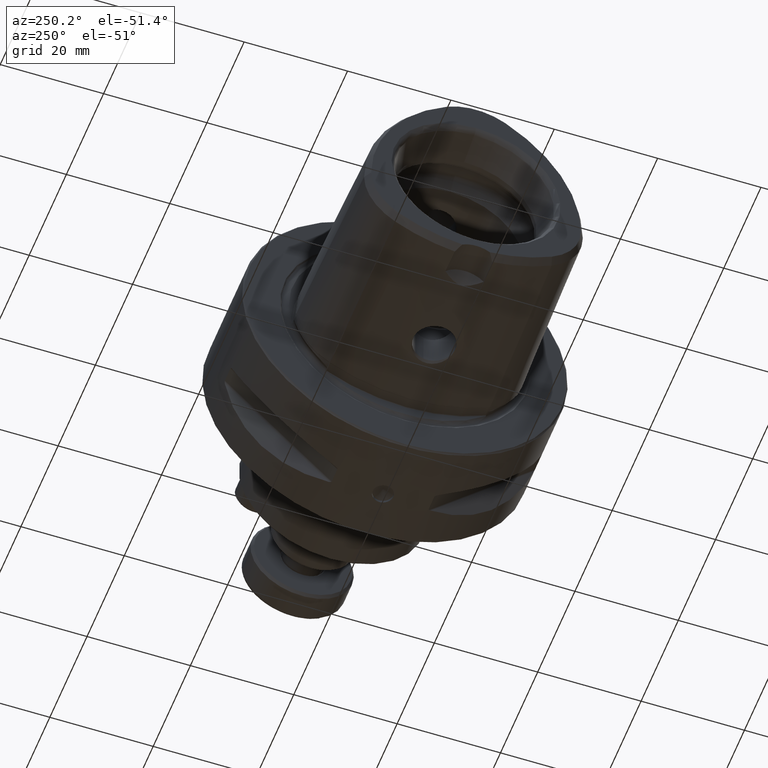
[diagram: clean part render]
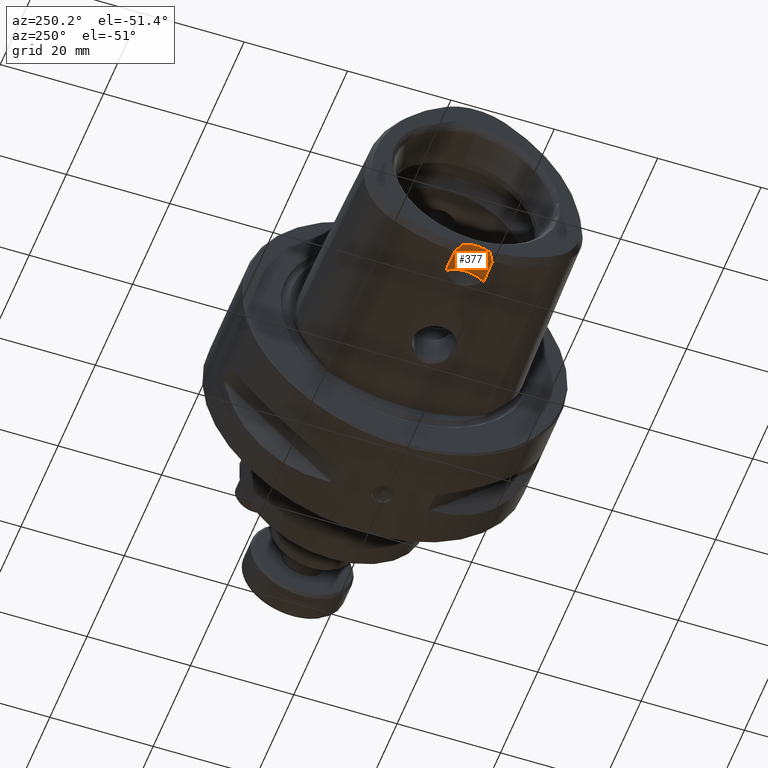
[diagram: same view with one face highlighted and labeled with its STEP entity id]
A machine part, auxiliary view. The second image highlights one B-rep face of the part: STEP entity #377.
In plain terms, the highlighted cylindrical surface (edge-blend (fillet) strip) has radius 5 mm, axis along (1, 0, 0).
Its self-contained STEP definition (entity closure, byte-faithful):
#377 = ADVANCED_FACE( '', ( #870 ), #871, .F. );
#870 = FACE_OUTER_BOUND( '', #1604, .T. );
#871 = CYLINDRICAL_SURFACE( '', #1605, 5.00000000000000 );
#1604 = EDGE_LOOP( '', ( #2385, #2386, #2387, #2388, #2389, #2390 ) );
#1605 = AXIS2_PLACEMENT_3D( '', #2391, #2392, #2393 );
#2385 = ORIENTED_EDGE( '', *, *, #3919, .T. );
#2386 = ORIENTED_EDGE( '', *, *, #3920, .T. );
#2387 = ORIENTED_EDGE( '', *, *, #3877, .F. );
#2388 = ORIENTED_EDGE( '', *, *, #3921, .F. );
#2389 = ORIENTED_EDGE( '', *, *, #3882, .F. );
#2390 = ORIENTED_EDGE( '', *, *, #3922, .T. );
#2391 = CARTESIAN_POINT( '', ( -38.0000000000000, 0.000000000000000, -23.0000000000000 ) );
#2392 = DIRECTION( '', ( 1.00000000000000, -0.000000000000000, -0.000000000000000 ) );
#2393 = DIRECTION( '', ( 0.000000000000000, 0.000000000000000, 1.00000000000000 ) );
#3877 = EDGE_CURVE( '', #4481, #4482, #4483, .T. );
#3882 = EDGE_CURVE( '', #4489, #4491, #4492, .T. );
#3919 = EDGE_CURVE( '', #4552, #4553, #4554, .T. );
#3920 = EDGE_CURVE( '', #4553, #4482, #4555, .T. );
#3921 = EDGE_CURVE( '', #4491, #4481, #4556, .T. );
#3922 = EDGE_CURVE( '', #4489, #4552, #4557, .T. );
#4481 = VERTEX_POINT( '', #5345 );
#4482 = VERTEX_POINT( '', #5346 );
#4483 = B_SPLINE_CURVE_WITH_KNOTS( '', 3, ( #5347, #5348, #5349, #5350 ), .UNSPECIFIED., .F., .F., ( 4, 4 ), ( 3.12145211077177E-005, 0.00481593698441368 ), .UNSPECIFIED. );
#4489 = VERTEX_POINT( '', #5357 );
#4491 = VERTEX_POINT( '', #5359 );
#4492 = B_SPLINE_CURVE_WITH_KNOTS( '', 3, ( #5360, #5361, #5362, #5363 ), .UNSPECIFIED., .F., .F., ( 4, 4 ), ( 0.00144946933262563, 0.00623419179593159 ), .UNSPECIFIED. );
#4552 = VERTEX_POINT( '', #5536 );
#4553 = VERTEX_POINT( '', #5537 );
#4554 = CIRCLE( '', #5538, 5.00000000000000 );
#4555 = B_SPLINE_CURVE_WITH_KNOTS( '', 3, ( #5539, #5540, #5541, #5542 ), .UNSPECIFIED., .F., .F., ( 4, 4 ), ( 8.18267427085042E-018, 0.00186926217942001 ), .UNSPECIFIED. );
#4556 = CIRCLE( '', #5543, 5.00000000000000 );
#4557 = B_SPLINE_CURVE_WITH_KNOTS( '', 3, ( #5544, #5545, #5546, #5547 ), .UNSPECIFIED., .F., .F., ( 4, 4 ), ( 0.000000000000000, 0.00186926217942001 ), .UNSPECIFIED. );
#5345 = CARTESIAN_POINT( '', ( -31.8000000000000, 3.71338904159242, -19.6517554112966 ) );
#5346 = CARTESIAN_POINT( '', ( -36.5824429953531, 3.61288780053967, -19.5435507032922 ) );
#5347 = CARTESIAN_POINT( '', ( -31.8000000000000, 3.71338904159241, -19.6517554112966 ) );
#5348 = CARTESIAN_POINT( '', ( -33.3941649931350, 3.68080287505197, -19.6156155444103 ) );
#5349 = CARTESIAN_POINT( '', ( -34.9883136879413, 3.64732572728819, -19.5795472867063 ) );
#5350 = CARTESIAN_POINT( '', ( -36.5824429953532, 3.61288780053965, -19.5435507032922 ) );
#5357 = CARTESIAN_POINT( '', ( -36.5824429953531, -3.61288780053967, -19.5435507032922 ) );
#5359 = CARTESIAN_POINT( '', ( -31.8000000000000, -3.71338904159242, -19.6517554112966 ) );
#5360 = CARTESIAN_POINT( '', ( -36.5824429953531, -3.61288780053965, -19.5435507032922 ) );
#5361 = CARTESIAN_POINT( '', ( -34.9883136879413, -3.64732572728819, -19.5795472867063 ) );
#5362 = CARTESIAN_POINT( '', ( -33.3941649931350, -3.68080287505197, -19.6156155444103 ) );
#5363 = CARTESIAN_POINT( '', ( -31.8000000000000, -3.71338904159241, -19.6517554112966 ) );
#5536 = CARTESIAN_POINT( '', ( -38.0000000000000, -2.66956773904171, -18.7723046364872 ) );
#5537 = CARTESIAN_POINT( '', ( -38.0000000000000, 2.66956773904171, -18.7723046364872 ) );
#5538 = AXIS2_PLACEMENT_3D( '', #7158, #7159, #7160 );
#5539 = CARTESIAN_POINT( '', ( -38.0000000000000, 2.66956773904171, -18.7723046364872 ) );
#5540 = CARTESIAN_POINT( '', ( -37.5574830182736, 3.04530190835975, -19.0095610446769 ) );
#5541 = CARTESIAN_POINT( '', ( -37.0798819254936, 3.35019969173929, -19.2689733604289 ) );
#5542 = CARTESIAN_POINT( '', ( -36.5824429953531, 3.61288780053966, -19.5435507032922 ) );
#5543 = AXIS2_PLACEMENT_3D( '', #7161, #7162, #7163 );
#5544 = CARTESIAN_POINT( '', ( -36.5824429953531, -3.61288780053967, -19.5435507032922 ) );
#5545 = CARTESIAN_POINT( '', ( -37.0798819254936, -3.35019969173929, -19.2689733604289 ) );
#5546 = CARTESIAN_POINT( '', ( -37.5574830182736, -3.04530190835978, -19.0095610446769 ) );
#5547 = CARTESIAN_POINT( '', ( -38.0000000000000, -2.66956773904173, -18.7723046364872 ) );
#7158 = CARTESIAN_POINT( '', ( -38.0000000000000, 0.000000000000000, -23.0000000000000 ) );
#7159 = DIRECTION( '', ( -1.00000000000000, 0.000000000000000, 0.000000000000000 ) );
#7160 = DIRECTION( '', ( 0.000000000000000, 0.000000000000000, 1.00000000000000 ) );
#7161 = CARTESIAN_POINT( '', ( -31.8000000000000, 0.000000000000000, -23.0000000000000 ) );
#7162 = DIRECTION( '', ( -1.00000000000000, 0.000000000000000, 0.000000000000000 ) );
#7163 = DIRECTION( '', ( 0.000000000000000, 0.000000000000000, 1.00000000000000 ) );